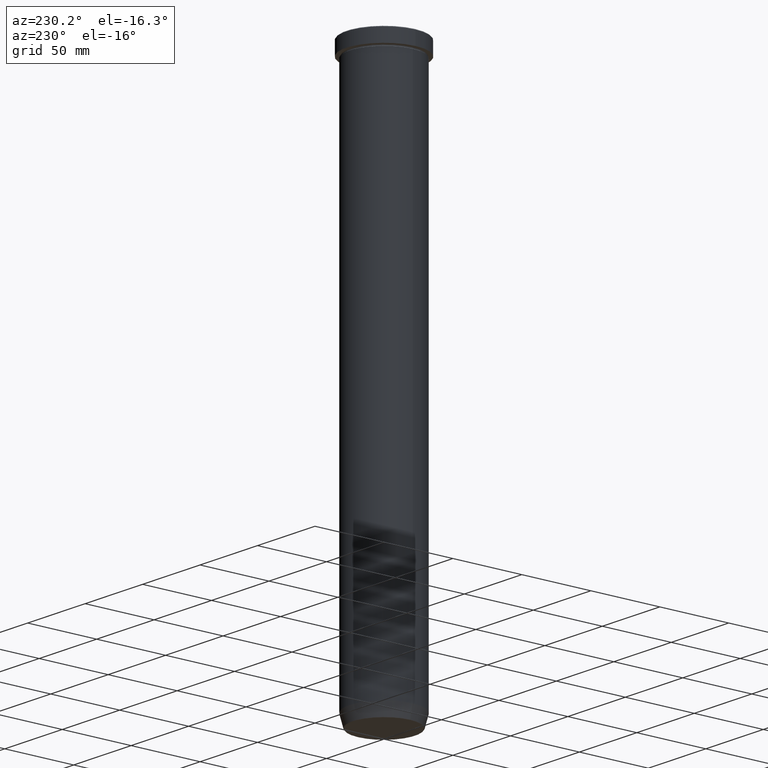
[diagram: clean part render]
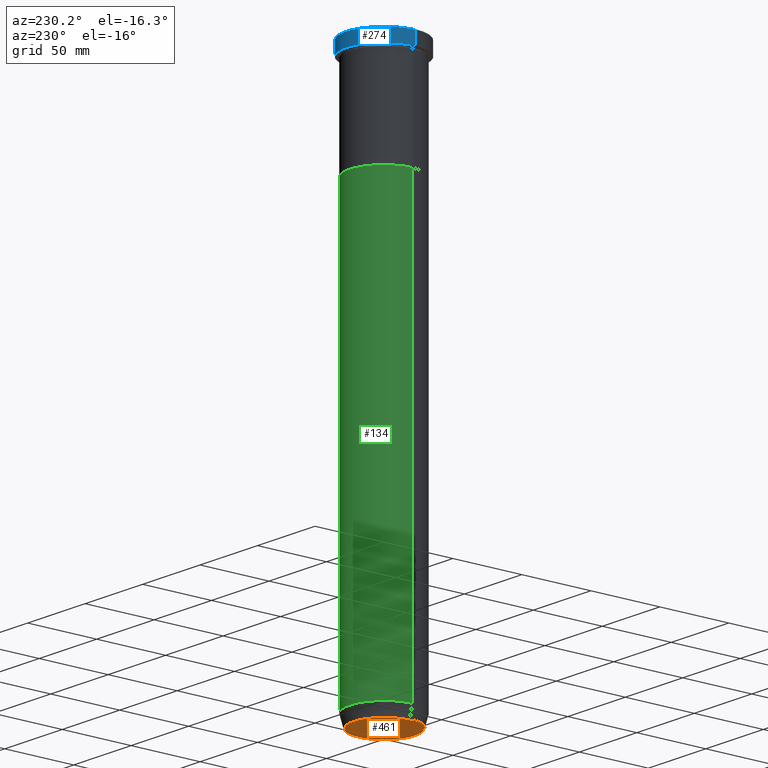
[diagram: same view with three faces highlighted in distinct colors, each labeled with its STEP entity id]
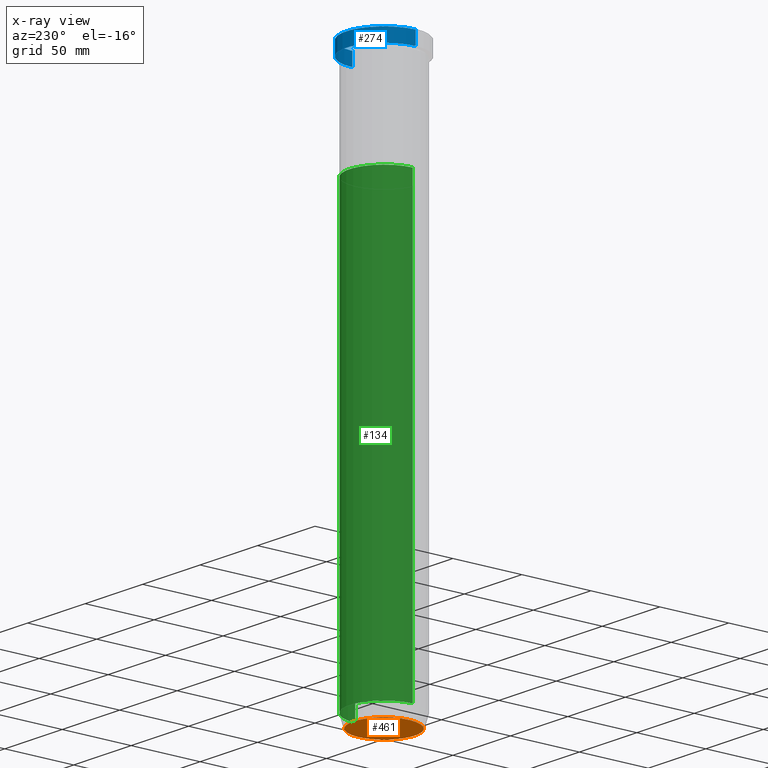
[diagram: x-ray of the same camera — body ghosted, the three highlighted faces saturated]
A machine part, auxiliary view with three faces highlighted in distinct colors.
The next image is the same camera in x-ray (body ghosted, the three faces saturated) — at least one of them is partly hidden behind the body in this view.
Their STEP definitions:

[orange] entity #461 — the highlighted planar face has unit normal (0, -0, 1).
#1 = CARTESIAN_POINT ( 'NONE',  ( 0.000000000000000000, 0.000000000000000000, -400.0000000000000000 ) ) ;
#7 = DIRECTION ( 'NONE',  ( 0.000000000000000000, -0.000000000000000000, 1.000000000000000000 ) ) ;
#12 = EDGE_CURVE ( 'NONE', #591, #431, #296, .T. ) ;
#42 = CIRCLE ( 'NONE', #510, 22.20479377413040822 ) ;
#81 = AXIS2_PLACEMENT_3D ( 'NONE', #1, #329, #504 ) ;
#105 = FACE_OUTER_BOUND ( 'NONE', #555, .T. ) ;
#139 = CARTESIAN_POINT ( 'NONE',  ( 0.000000000000000000, 0.000000000000000000, -400.0000000000000000 ) ) ;
#165 = AXIS2_PLACEMENT_3D ( 'NONE', #293, #7, #483 ) ;
#190 = DIRECTION ( 'NONE',  ( 1.000000000000000000, 0.000000000000000000, 0.000000000000000000 ) ) ;
#227 = ORIENTED_EDGE ( 'NONE', *, *, #466, .T. ) ;
#229 = CARTESIAN_POINT ( 'NONE',  ( 22.20479377413040822, 0.000000000000000000, -400.0000000000000000 ) ) ;
#238 = PLANE ( 'NONE',  #165 ) ;
#284 = CARTESIAN_POINT ( 'NONE',  ( -22.20479377413040822, 2.748875911406054788E-15, -400.0000000000000000 ) ) ;
#293 = CARTESIAN_POINT ( 'NONE',  ( 0.000000000000000000, 4.286263797015736496E-14, -400.0000000000000000 ) ) ;
#296 = CIRCLE ( 'NONE', #81, 22.20479377413040822 ) ;
#329 = DIRECTION ( 'NONE',  ( 0.000000000000000000, 0.000000000000000000, -1.000000000000000000 ) ) ;
#330 = DIRECTION ( 'NONE',  ( 0.000000000000000000, 0.000000000000000000, -1.000000000000000000 ) ) ;
#366 = ORIENTED_EDGE ( 'NONE', *, *, #12, .T. ) ;
#431 = VERTEX_POINT ( 'NONE', #284 ) ;
#461 = ADVANCED_FACE ( 'NONE', ( #105 ), #238, .F. ) ;
#466 = EDGE_CURVE ( 'NONE', #431, #591, #42, .T. ) ;
#483 = DIRECTION ( 'NONE',  ( 1.000000000000000000, 0.000000000000000000, 0.000000000000000000 ) ) ;
#504 = DIRECTION ( 'NONE',  ( 1.000000000000000000, 0.000000000000000000, 0.000000000000000000 ) ) ;
#510 = AXIS2_PLACEMENT_3D ( 'NONE', #139, #330, #190 ) ;
#555 = EDGE_LOOP ( 'NONE', ( #366, #227 ) ) ;
#591 = VERTEX_POINT ( 'NONE', #229 ) ;

[blue] entity #274 — the highlighted cylindrical surface (partial cylindrical patch) has radius 27.5 mm, axis along (-0, -0, 1).
#30 = ORIENTED_EDGE ( 'NONE', *, *, #149, .F. ) ;
#33 = VERTEX_POINT ( 'NONE', #264 ) ;
#35 = VERTEX_POINT ( 'NONE', #277 ) ;
#46 = ORIENTED_EDGE ( 'NONE', *, *, #57, .T. ) ;
#57 = EDGE_CURVE ( 'NONE', #325, #35, #181, .T. ) ;
#64 = AXIS2_PLACEMENT_3D ( 'NONE', #496, #448, #210 ) ;
#76 = DIRECTION ( 'NONE',  ( 1.000000000000000000, 0.000000000000000000, 0.000000000000000000 ) ) ;
#119 = DIRECTION ( 'NONE',  ( 1.000000000000000000, 0.000000000000000000, 0.000000000000000000 ) ) ;
#149 = EDGE_CURVE ( 'NONE', #420, #35, #440, .T. ) ;
#155 = DIRECTION ( 'NONE',  ( -0.000000000000000000, -0.000000000000000000, 1.000000000000000000 ) ) ;
#162 = CARTESIAN_POINT ( 'NONE',  ( 27.50000000000000000, 0.000000000000000000, 0.000000000000000000 ) ) ;
#163 = FACE_OUTER_BOUND ( 'NONE', #337, .T. ) ;
#179 = ORIENTED_EDGE ( 'NONE', *, *, #192, .T. ) ;
#181 = CIRCLE ( 'NONE', #261, 27.50000000000000000 ) ;
#192 = EDGE_CURVE ( 'NONE', #420, #33, #336, .T. ) ;
#200 = DIRECTION ( 'NONE',  ( -0.000000000000000000, -0.000000000000000000, 1.000000000000000000 ) ) ;
#208 = CARTESIAN_POINT ( 'NONE',  ( -27.50000000000000000, 3.367778697655221307E-15, 0.000000000000000000 ) ) ;
#210 = DIRECTION ( 'NONE',  ( 1.000000000000000000, 0.000000000000000000, 0.000000000000000000 ) ) ;
#215 = VECTOR ( 'NONE', #255, 1000.000000000000000 ) ;
#255 = DIRECTION ( 'NONE',  ( -0.000000000000000000, -0.000000000000000000, 1.000000000000000000 ) ) ;
#258 = EDGE_CURVE ( 'NONE', #33, #325, #580, .T. ) ;
#261 = AXIS2_PLACEMENT_3D ( 'NONE', #301, #446, #76 ) ;
#264 = CARTESIAN_POINT ( 'NONE',  ( -27.50000000000000000, 3.367778697655221307E-15, -9.999999999999998224 ) ) ;
#274 = ADVANCED_FACE ( 'NONE', ( #163 ), #401, .T. ) ;
#277 = CARTESIAN_POINT ( 'NONE',  ( 27.50000000000000000, 0.000000000000000000, -0.5000000000000420775 ) ) ;
#301 = CARTESIAN_POINT ( 'NONE',  ( 0.000000000000000000, 0.000000000000000000, -0.5000000000000420775 ) ) ;
#325 = VERTEX_POINT ( 'NONE', #351 ) ;
#336 = CIRCLE ( 'NONE', #563, 27.50000000000000000 ) ;
#337 = EDGE_LOOP ( 'NONE', ( #179, #502, #46, #30 ) ) ;
#351 = CARTESIAN_POINT ( 'NONE',  ( -27.50000000000000000, 3.367778697655221307E-15, -0.5000000000000420775 ) ) ;
#396 = VECTOR ( 'NONE', #155, 1000.000000000000000 ) ;
#401 = CYLINDRICAL_SURFACE ( 'NONE', #64, 27.50000000000000000 ) ;
#420 = VERTEX_POINT ( 'NONE', #559 ) ;
#440 = LINE ( 'NONE', #162, #396 ) ;
#446 = DIRECTION ( 'NONE',  ( 0.000000000000000000, 0.000000000000000000, -1.000000000000000000 ) ) ;
#448 = DIRECTION ( 'NONE',  ( -0.000000000000000000, -0.000000000000000000, 1.000000000000000000 ) ) ;
#496 = CARTESIAN_POINT ( 'NONE',  ( 0.000000000000000000, 0.000000000000000000, 0.000000000000000000 ) ) ;
#502 = ORIENTED_EDGE ( 'NONE', *, *, #258, .T. ) ;
#538 = CARTESIAN_POINT ( 'NONE',  ( 0.000000000000000000, 0.000000000000000000, -9.999999999999998224 ) ) ;
#559 = CARTESIAN_POINT ( 'NONE',  ( 27.50000000000000000, 0.000000000000000000, -9.999999999999998224 ) ) ;
#563 = AXIS2_PLACEMENT_3D ( 'NONE', #538, #200, #119 ) ;
#580 = LINE ( 'NONE', #208, #215 ) ;

[green] entity #134 — the highlighted cylindrical surface (partial cylindrical patch) has radius 25 mm, axis along (-0, -0, 1).
#10 = CARTESIAN_POINT ( 'NONE',  ( 0.000000000000000000, 0.000000000000000000, -80.00000000000000000 ) ) ;
#67 = DIRECTION ( 'NONE',  ( -0.000000000000000000, -0.000000000000000000, 1.000000000000000000 ) ) ;
#80 = VERTEX_POINT ( 'NONE', #535 ) ;
#116 = CYLINDRICAL_SURFACE ( 'NONE', #172, 25.00000000000000000 ) ;
#118 = EDGE_CURVE ( 'NONE', #469, #412, #247, .T. ) ;
#120 = AXIS2_PLACEMENT_3D ( 'NONE', #353, #164, #530 ) ;
#130 = AXIS2_PLACEMENT_3D ( 'NONE', #10, #144, #228 ) ;
#134 = ADVANCED_FACE ( 'NONE', ( #298 ), #116, .T. ) ;
#143 = ORIENTED_EDGE ( 'NONE', *, *, #161, .T. ) ;
#144 = DIRECTION ( 'NONE',  ( -0.000000000000000000, -0.000000000000000000, 1.000000000000000000 ) ) ;
#161 = EDGE_CURVE ( 'NONE', #469, #80, #252, .T. ) ;
#164 = DIRECTION ( 'NONE',  ( -0.000000000000000000, -0.000000000000000000, 1.000000000000000000 ) ) ;
#172 = AXIS2_PLACEMENT_3D ( 'NONE', #250, #403, #442 ) ;
#186 = CARTESIAN_POINT ( 'NONE',  ( -25.00000000000000000, 3.061616997868383043E-15, 0.000000000000000000 ) ) ;
#228 = DIRECTION ( 'NONE',  ( 1.000000000000000000, 0.000000000000000000, 0.000000000000000000 ) ) ;
#235 = ORIENTED_EDGE ( 'NONE', *, *, #118, .F. ) ;
#237 = ORIENTED_EDGE ( 'NONE', *, *, #567, .T. ) ;
#244 = VECTOR ( 'NONE', #67, 1000.000000000000000 ) ;
#247 = LINE ( 'NONE', #393, #282 ) ;
#250 = CARTESIAN_POINT ( 'NONE',  ( 0.000000000000000000, 0.000000000000000000, 0.000000000000000000 ) ) ;
#252 = CIRCLE ( 'NONE', #120, 25.00000000000000000 ) ;
#259 = ORIENTED_EDGE ( 'NONE', *, *, #352, .F. ) ;
#271 = CIRCLE ( 'NONE', #130, 25.00000000000000000 ) ;
#282 = VECTOR ( 'NONE', #345, 1000.000000000000000 ) ;
#298 = FACE_OUTER_BOUND ( 'NONE', #424, .T. ) ;
#345 = DIRECTION ( 'NONE',  ( -0.000000000000000000, -0.000000000000000000, 1.000000000000000000 ) ) ;
#352 = EDGE_CURVE ( 'NONE', #412, #588, #271, .T. ) ;
#353 = CARTESIAN_POINT ( 'NONE',  ( 0.000000000000000000, 0.000000000000000000, -391.0000000000000000 ) ) ;
#393 = CARTESIAN_POINT ( 'NONE',  ( 25.00000000000000000, 0.000000000000000000, 0.000000000000000000 ) ) ;
#403 = DIRECTION ( 'NONE',  ( -0.000000000000000000, -0.000000000000000000, 1.000000000000000000 ) ) ;
#412 = VERTEX_POINT ( 'NONE', #421 ) ;
#421 = CARTESIAN_POINT ( 'NONE',  ( 25.00000000000000000, 0.000000000000000000, -80.00000000000000000 ) ) ;
#424 = EDGE_LOOP ( 'NONE', ( #143, #237, #259, #235 ) ) ;
#427 = CARTESIAN_POINT ( 'NONE',  ( -25.00000000000000000, 3.061616997868383043E-15, -80.00000000000000000 ) ) ;
#442 = DIRECTION ( 'NONE',  ( 1.000000000000000000, 0.000000000000000000, 0.000000000000000000 ) ) ;
#469 = VERTEX_POINT ( 'NONE', #557 ) ;
#485 = LINE ( 'NONE', #186, #244 ) ;
#530 = DIRECTION ( 'NONE',  ( 1.000000000000000000, 0.000000000000000000, 0.000000000000000000 ) ) ;
#535 = CARTESIAN_POINT ( 'NONE',  ( -25.00000000000000000, 3.061616997868383043E-15, -391.0000000000000000 ) ) ;
#557 = CARTESIAN_POINT ( 'NONE',  ( 25.00000000000000000, 0.000000000000000000, -391.0000000000000000 ) ) ;
#567 = EDGE_CURVE ( 'NONE', #80, #588, #485, .T. ) ;
#588 = VERTEX_POINT ( 'NONE', #427 ) ;